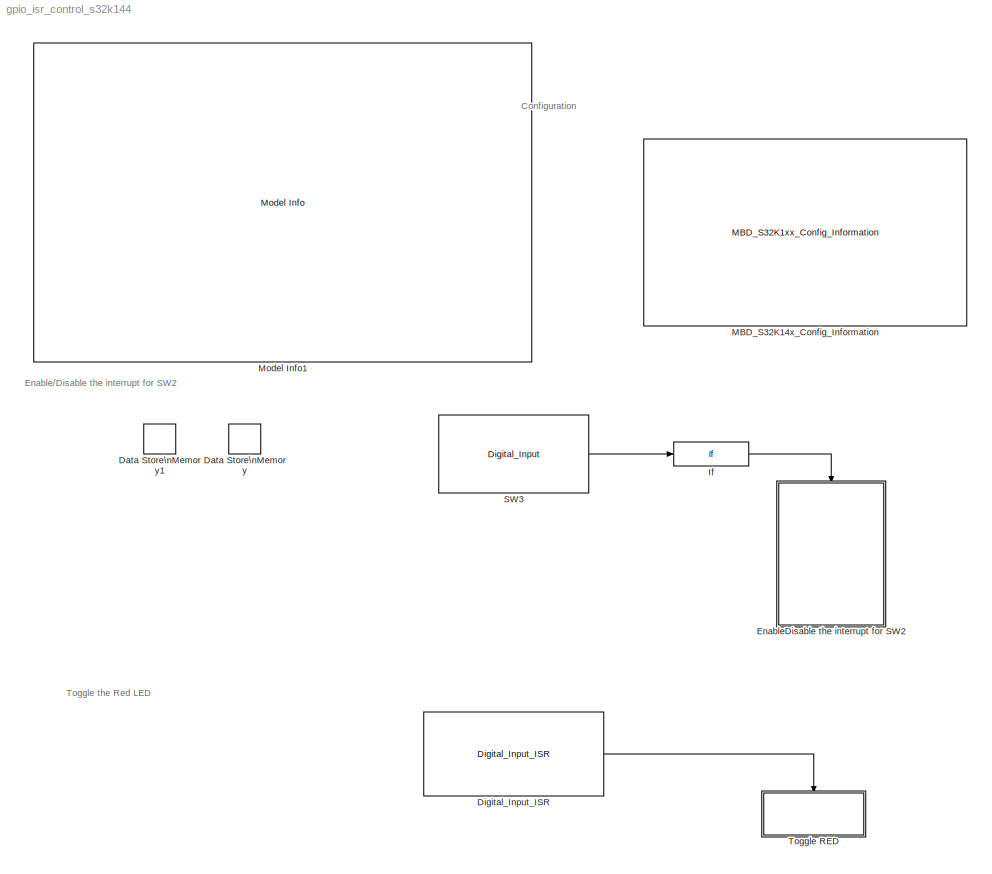
MODEL gpio_isr_control_s32k144
KIND model
CONFIG InitFcn = mbd_s32k_consistency_checks(bdroot(gcs));
BLOCK [DataStoreMemory] Data Store\nMemory
  DataStoreName = B
  OutDataTypeStr = boolean
  ReadBeforeWriteMsg = warning
  SID = 37
  ShowAdditionalParam = off
  WriteAfterReadMsg = warning
  WriteAfterWriteMsg = warning
BLOCK [DataStoreMemory] Data Store\nMemory1
  OutDataTypeStr = boolean
  ReadBeforeWriteMsg = warning
  SID = 79
  ShowAdditionalParam = off
  WriteAfterReadMsg = warning
  WriteAfterWriteMsg = warning
BLOCK [Reference] Digital_Input_ISR  REF=mbd_s32k1xx_ec_toolbox/GPIO Blocks/Digital_Input_ISR
  MultiThreadCoSim = auto
  Ports = [0, 1]
  SID = 29
  SourceBlock = mbd_s32k1xx_ec_toolbox/GPIO Blocks/Digital_Input_ISR
  SourceType = gpi_s32k_isr
  gpio_pin = PTC12: [PTC12 | Port C I/O]
  irqc = on falling-edge
  prio = 2
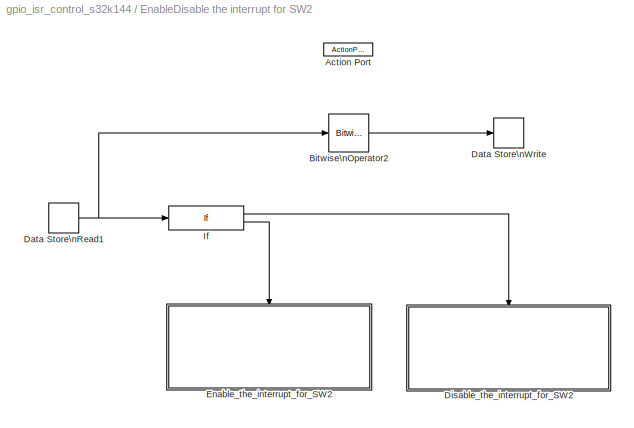
BLOCK [SubSystem] EnableDisable the interrupt for SW2
  Ports = [0, 0, 0, 0, 0, 0, 0, 1]
  RequestExecContextInheritance = off
  SID = 64
  TreatAsAtomicUnit = on
BLOCK [ActionPort] EnableDisable the interrupt for SW2/Action Port
  ActionType = then
  SID = 65
BLOCK [Reference] EnableDisable the interrupt for SW2/Bitwise\nOperator2  REF=simulink/Logic and Bit\nOperations/Bitwise\nOperator
  BitMask = bin2dec('11011001')
  BitMaskRealWorld = Stored Integer
  MultiThreadCoSim = auto
  NumInputPorts = 1
  Ports = [1, 1]
  SID = 76
  SourceBlock = simulink/Logic and Bit\nOperations/Bitwise\nOperator
  SourceProductBaseCode = SL
  SourceProductName = Simulink
  SourceType = Bitwise Operator
  UseBitMask = off
  logicop = NOT
BLOCK [DataStoreRead] EnableDisable the interrupt for SW2/Data Store\nRead1
  Ports = [0, 1]
  SID = 81
BLOCK [DataStoreWrite] EnableDisable the interrupt for SW2/Data Store\nWrite
  Ports = [1]
  SID = 78
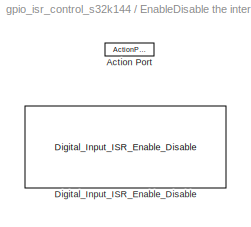
BLOCK [SubSystem] EnableDisable the interrupt for SW2/Disable_the_interrupt_for_SW2
  Ports = [0, 0, 0, 0, 0, 0, 0, 1]
  RTWFcnNameOpts = Use subsystem name
  RTWSystemCode = Reusable function
  RequestExecContextInheritance = off
  SID = 82
BLOCK [ActionPort] EnableDisable the interrupt for SW2/Disable_the_interrupt_for_SW2/Action Port
  ActionType = then
  SID = 87
BLOCK [Reference] EnableDisable the interrupt for SW2/Disable_the_interrupt_for_SW2/Digital_Input_ISR_Enable_Disable  REF=mbd_s32k1xx_ec_toolbox/GPIO Blocks/Digital_Input_ISR_Enable_Disable
  MultiThreadCoSim = auto
  Ports = []
  SID = 51
  SourceBlock = mbd_s32k1xx_ec_toolbox/GPIO Blocks/Digital_Input_ISR_Enable_Disable
  SourceType = gpi_s32k_isr_control
  gpio_pin = PTC12: [PTC12 | Port C I/O]
  irqc = request disabled
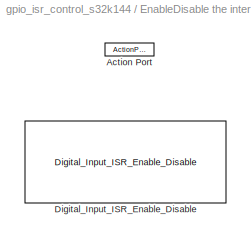
BLOCK [SubSystem] EnableDisable the interrupt for SW2/Enable_the_interrupt_for_SW2
  Ports = [0, 0, 0, 0, 0, 0, 0, 1]
  RTWFcnNameOpts = Use subsystem name
  RTWSystemCode = Reusable function
  RequestExecContextInheritance = off
  SID = 84
BLOCK [ActionPort] EnableDisable the interrupt for SW2/Enable_the_interrupt_for_SW2/Action Port
  ActionType = else
  SID = 88
BLOCK [Reference] EnableDisable the interrupt for SW2/Enable_the_interrupt_for_SW2/Digital_Input_ISR_Enable_Disable  REF=mbd_s32k1xx_ec_toolbox/GPIO Blocks/Digital_Input_ISR_Enable_Disable
  MultiThreadCoSim = auto
  Ports = []
  SID = 86
  SourceBlock = mbd_s32k1xx_ec_toolbox/GPIO Blocks/Digital_Input_ISR_Enable_Disable
  SourceType = gpi_s32k_isr_control
  gpio_pin = PTC12: [PTC12 | Port C I/O]
  irqc = on falling-edge
BLOCK [If] EnableDisable the interrupt for SW2/If
  IfExpression = u1 == 1
  Ports = [1, 2]
  SID = 80
BLOCK [If] If
  IfExpression = u1 == 1
  Ports = [1, 1]
  SID = 74
  ShowElse = off
BLOCK [Reference] MBD_S32K14x_Config_Information  REF=mbd_s32k1xx_ec_toolbox/MBD_S32K1xx_Config_Information
  ADC_PcrCheckEnDis = on
  AMMCLIB_PcrCheckEnDis = on
  CMP_PcrCheckEnDis = on
  CSEc_PcrCheckEnDis = on
  ConfigParams_PcrCheckEnDis = on
  FM_PcrCheckEnDis = on
  FTM_Dual_Edge_Inputs_PcrCheckEnDis = on
  FTM_Hall_Sensor_Inputs_PcrCheckEnDis = on
  FTM_Input_Edge_Inputs_PcrCheckEnDis = on
  FTM_PWM_PcrCheckEnDis = on
  FTM_Quadrature_Inputs_PcrCheckEnDis = on
  FlexCAN_PcrCheckEnDis = on
  FlexIO_PcrCheckEnDis = on
  GPIO_InputPcrCheckEnDis = on
  GPIO_OutputPcrCheckEnDis = on
  LIN_PcrCheckEnDis = on
  LPI2C_PcrCheckEnDis = on
  LPSPI_PcrCheckEnDis = on
  LPTMR_PcrCheckEnDis = on
  LPUART_PcrCheckEnDis = on
  ModelRef_PcrCheckEnDis = on
  MultiThreadCoSim = auto
  PDB0_PcrCheckEnDis = on
  PIT_PcrCheckEnDis = on
  Ports = []
  Profile_PcrCheckEnDis = on
  RTC_PcrCheckEnDis = on
  SBC_PcrCheckEnDis = on
  SID = 98
  SourceBlock = mbd_s32k1xx_ec_toolbox/MBD_S32K1xx_Config_Information
  SourceType = MBDTBX_EC_S32K
  WDOG_PcrCheckEnDis = on
  config_params = []
  disp_str = Target : S32K144-64KB_SRAM\nPackage : 100-pin\nSystem clock : 80 MHz\nXTAL clock : External 8 MHz\nCompiler : IAR\nTarget Type : FLASH\nDownload Code after build : off\nStep Tick Interrupt Priority : 15
  ds_import_enable = on
  eDMA_PcrCheckEnDis = on
  gcc_target_assemble_opts = -mcpu=cortex-m4 -mthumb -mfloat-abi=hard -mfpu=fpv4-sp-d16 -g
  gcc_target_compile_opts = -mcpu=cortex-m4 -mthumb -mfloat-abi=hard -mfpu=fpv4-sp-d16 -O1 -g -gstrict-dwarf
  gcc_target_default_lcf = on
  gcc_target_link_opts = -mcpu=cortex-m4 -mthumb -mfloat-abi=hard -mfpu=fpv4-sp-d16
  gcc_target_user_lcf = S32K144_64_flash.ld
  ghs_target_assemble_opts = -cpu=cortexm4f -fpu=vfpv4_d16
  ghs_target_compile_opts = -cpu=cortexm4f -thumb -DARM_MATH_CM4 -fpu=vfpv4_d16 -fsingle -Ogeneral -Wundef -Wimplicit-int -Wshadow -Wtrigraphs --no_commons --gnu_asm -gnu99 -gdwarf-2 -G
  ghs_target_default_lcf = on
  ghs_target_link_opts = -cpu=cortexm4f -thumb -fpu=vfpv4_d16
  ghs_target_user_lcf = S32K144_64_flash.ld
  iar_target_assemble_opts = --cpu Cortex-M4F --thumb --fpu VFPv4_sp
  iar_target_compile_opts = --cpu=Cortex-M4F --thumb --fpu=VFPv4_sp -Ol -e --debug --dlib_config normal
  iar_target_default_lcf = on
  iar_target_link_opts = --no_exceptions --vfe --inline
  iar_target_user_lcf = S32K144_64_flash.icf
  mbdt_ver = 0
  mcu_steptick_prio = 15
  mcu_steptick_timer = LPIT Channel 0
  mcu_system_clock_freq = 80
  mcu_target_name = S32K144
  mcu_target_package = 100-LQFP
  mcu_target_sram_size = 64KB
  mcu_xtal_freq = External 8
  pil_download_enable = off
  pil_download_rate = 57600
  pil_opensda_drive = Custom
  pil_opensda_drive_custom = D
  pil_uart_instance = 1
  pil_uart_rx = PTC6: [LPUART1_RX | Receive]
  pil_uart_tx = PTC7: [LPUART1_TX | Transmit]
  rbl_com_port = Custom
  rbl_com_port_custom = COM1
  rbl_download_enable = on
  rbl_download_interface = OpenSDA
  rbl_restart_request = off
  rbl_start_delay = 5000000
  target_compiler = GCC
  target_memory = FLASH
BLOCK [Reference] Model Info1  REF=simulink/Model-Wide\nUtilities/Model Info
  DisplayStringWithTags = Model Name: %<ModelName>\n\nDescription: %<Description>
  Frame = on
  HorizontalTextAlignment = Left
  LeftAlignmentValue = 0.02
  MaskDisplayString = Model Name: gpio_isr_control_s32k144\\n\\nDescription: This model demonstrate the \"GPIO ISR Control\" block functionality for S32k144EVB.\\n\\nValidation:\\n- Press  SW2 to toggle the Red LED ( initial the interrupt for SW2 is enabled)\\n- Press SW3 to disable/enable the interrupt for SW2\\n- If the interrupt is disabled, the Red LED should not toggle when SW2 is pressed
  Ports = []
  SID = 93
  SourceBlock = simulink/Model-Wide\nUtilities/Model Info
  SourceProductBaseCode = SL
  SourceProductName = Simulink
  SourceType = CMBlock
BLOCK [Reference] SW3  REF=mbd_s32k1xx_ec_toolbox/GPIO Blocks/Digital_Input
  MultiThreadCoSim = auto
  Ports = [0, 1]
  SID = 75
  SourceBlock = mbd_s32k1xx_ec_toolbox/GPIO Blocks/Digital_Input
  SourceType = gpio_s32k_input
  gpio_pin = PTC13: [PTC13 | Port C I/O]
  passive_filter = on
  pull_resistor = None
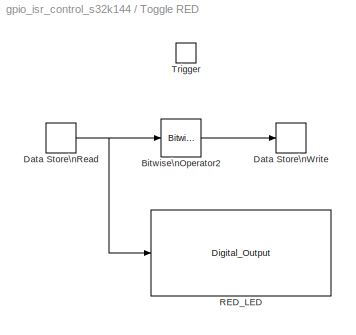
BLOCK [SubSystem] Toggle RED
  Ports = [0, 0, 0, 1]
  RequestExecContextInheritance = off
  SID = 31
  TreatAsAtomicUnit = on
BLOCK [Reference] Toggle RED/Bitwise\nOperator2  REF=simulink/Logic and Bit\nOperations/Bitwise\nOperator
  BitMask = bin2dec('11011001')
  BitMaskRealWorld = Stored Integer
  MultiThreadCoSim = auto
  NumInputPorts = 1
  Ports = [1, 1]
  SID = 39
  SourceBlock = simulink/Logic and Bit\nOperations/Bitwise\nOperator
  SourceProductBaseCode = SL
  SourceProductName = Simulink
  SourceType = Bitwise Operator
  UseBitMask = off
  logicop = NOT
BLOCK [DataStoreRead] Toggle RED/Data Store\nRead
  DataStoreName = B
  Ports = [0, 1]
  SID = 38
BLOCK [DataStoreWrite] Toggle RED/Data Store\nWrite
  DataStoreName = B
  Ports = [1]
  SID = 40
BLOCK [Reference] Toggle RED/RED_LED  REF=mbd_s32k1xx_ec_toolbox/GPIO Blocks/Digital_Output
  MultiThreadCoSim = auto
  Ports = [1]
  SID = 30
  SourceBlock = mbd_s32k1xx_ec_toolbox/GPIO Blocks/Digital_Output
  SourceType = gpio_s32k_output
  drive_strength = Low
  gpio_pin = PTD15: [PTD15 | Port D I/O]
  init_val = Low
BLOCK [TriggerPort] Toggle RED/Trigger
  Ports = []
  SID = 54
  StatesWhenEnabling = held
  TriggerType = function-call
  VariantControl = Variant
ANNOTATION (root): Configuration
ANNOTATION (root): Enable/Disable the interrupt for SW2
ANNOTATION (root): Toggle the Red LED
LINE Digital_Input_ISR:1 -> Toggle RED:trigger
LINE EnableDisable the interrupt for SW2/Bitwise\nOperator2:1 -> EnableDisable the interrupt for SW2/Data Store\nWrite:1
NET EnableDisable the interrupt for SW2/Data Store\nRead1:1 -> EnableDisable the interrupt for SW2/Bitwise\nOperator2:1, EnableDisable the interrupt for SW2/If:1
LINE EnableDisable the interrupt for SW2/If:1 -> EnableDisable the interrupt for SW2/Disable_the_interrupt_for_SW2:ifaction
LINE EnableDisable the interrupt for SW2/If:2 -> EnableDisable the interrupt for SW2/Enable_the_interrupt_for_SW2:ifaction
LINE If:1 -> EnableDisable the interrupt for SW2:ifaction
LINE SW3:1 -> If:1
LINE Toggle RED/Bitwise\nOperator2:1 -> Toggle RED/Data Store\nWrite:1
NET Toggle RED/Data Store\nRead:1 -> Toggle RED/Bitwise\nOperator2:1, Toggle RED/RED_LED:1
note: NET lines group one-source signal fan-out (src -> all destinations, sorted); 1:1 wires keep LINE
